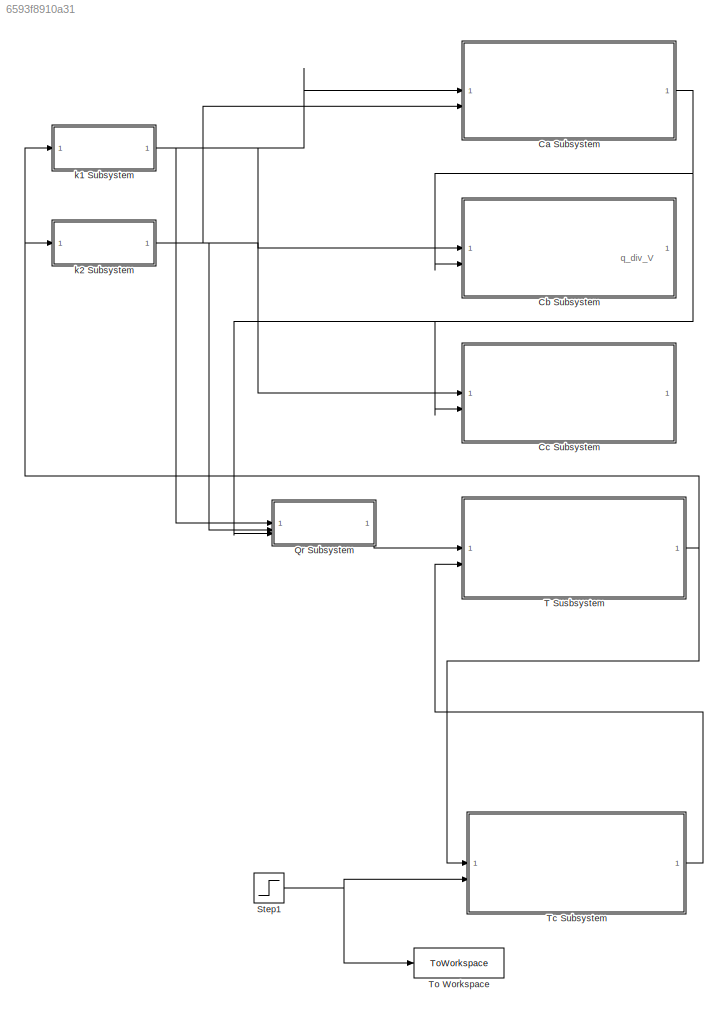
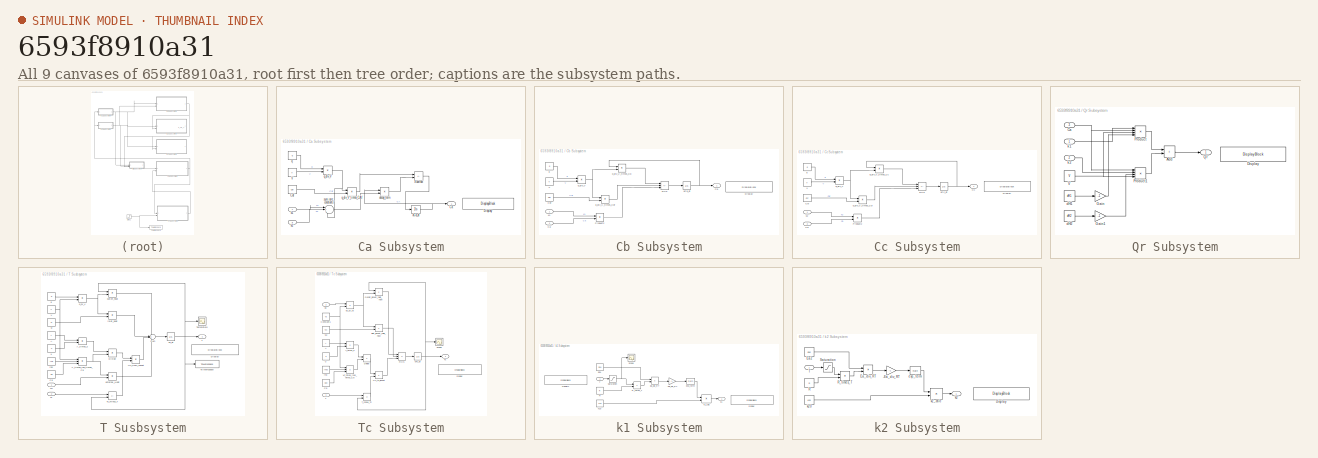
[diagram: thumbnail index - all 9 canvases of the model, root first then tree order]
MODEL slx_6593f8910a31
KIND model
CONFIG AbsTol = auto
CONFIG EnableMultiTasking = off
CONFIG FixedStep = auto
CONFIG MaxStep = auto
CONFIG MinStep = 1e-6
CONFIG RelTol = 1e-4
CONFIG SampleTimeConstraint = Unconstrained
CONFIG SolverName = VariableStepAuto
CONFIG StartTime = 0.0
CONFIG StopTime = 1000
BLOCK [SubSystem] Ca Subsystem
BLOCK [Outport] Ca Subsystem/Ca
BLOCK [Constant] Ca Subsystem/Caf
  Value = Caf
BLOCK [DisplayBlock] Ca Subsystem/Display
  LabelPosition = Hide
  Transparency = 1
BLOCK [Sum] Ca Subsystem/Subtract
  IconShape = rectangular
  Inputs = +-
BLOCK [Constant] Ca Subsystem/V
  Value = V
BLOCK [Integrator] Ca Subsystem/dCa_dt
  InitialCondition = 4.22
BLOCK [Product] Ca Subsystem/decay_term
BLOCK [Inport] Ca Subsystem/k1
BLOCK [Inport] Ca Subsystem/k2
  Port = 2
BLOCK [Constant] Ca Subsystem/q
  Value = q
BLOCK [Product] Ca Subsystem/q_div_V
  Inputs = */
BLOCK [Product] Ca Subsystem/q_div_V_times_CAf
BLOCK [Sum] Ca Subsystem/sum_rate_constants
  Inputs = |+++
BLOCK [SubSystem] Cb Subsystem
BLOCK [Inport] Cb Subsystem/Ca
  Port = 2
BLOCK [Outport] Cb Subsystem/Cb
BLOCK [Constant] Cb Subsystem/Cbf
  Value = Cbf
BLOCK [DisplayBlock] Cb Subsystem/Display
  LabelPosition = Hide
  Transparency = 1
BLOCK [Product] Cb Subsystem/Product2
BLOCK [Sum] Cb Subsystem/RHS
  IconShape = rectangular
  Inputs = -++
BLOCK [Constant] Cb Subsystem/V
  Value = V
BLOCK [Integrator] Cb Subsystem/dCb_dt
BLOCK [Inport] Cb Subsystem/k1
BLOCK [Constant] Cb Subsystem/q
  Value = q
BLOCK [Product] Cb Subsystem/q_div_V
  Inputs = */
BLOCK [Product] Cb Subsystem/q_div_V_times_Cb
BLOCK [Product] Cb Subsystem/q_div_V_times_Cbf
BLOCK [SubSystem] Cc Subsystem
BLOCK [Inport] Cc Subsystem/Ca
  Port = 2
BLOCK [Outport] Cc Subsystem/Cc
BLOCK [Constant] Cc Subsystem/Ccf
  Value = Ccf
BLOCK [DisplayBlock] Cc Subsystem/Display
  LabelPosition = Hide
  Transparency = 1
BLOCK [Product] Cc Subsystem/Product2
BLOCK [Sum] Cc Subsystem/RHS
  IconShape = rectangular
  Inputs = -++
BLOCK [Constant] Cc Subsystem/V
  Value = V
BLOCK [Integrator] Cc Subsystem/dCc_dt
BLOCK [Inport] Cc Subsystem/k2
BLOCK [Constant] Cc Subsystem/q
  Value = q
BLOCK [Product] Cc Subsystem/q_div_V
  Inputs = */
BLOCK [Product] Cc Subsystem/q_div_V_times_Cc
BLOCK [Product] Cc Subsystem/q_div_V_times_Ccf
BLOCK [SubSystem] Qr Subsystem
BLOCK [Sum] Qr Subsystem/Add
  IconShape = rectangular
BLOCK [Inport] Qr Subsystem/Ca
  Port = 3
BLOCK [DisplayBlock] Qr Subsystem/Display
  LabelPosition = Hide
  Transparency = 1
BLOCK [Gain] Qr Subsystem/Gain
  Gain = -1
BLOCK [Gain] Qr Subsystem/Gain1
  Gain = -1
BLOCK [Product] Qr Subsystem/Product
  Inputs = 4
BLOCK [Product] Qr Subsystem/Product1
  Inputs = 4
BLOCK [Outport] Qr Subsystem/Qr
BLOCK [Constant] Qr Subsystem/V
  Value = V
BLOCK [Constant] Qr Subsystem/dH1
  Value = dH1
BLOCK [Constant] Qr Subsystem/dH2
  Value = dH2
BLOCK [Inport] Qr Subsystem/k1
BLOCK [Inport] Qr Subsystem/k2
  Port = 2
BLOCK [Step] Step1
  After = 0.010
  Before = 0.005
  SampleTime = 0
  Time = 200
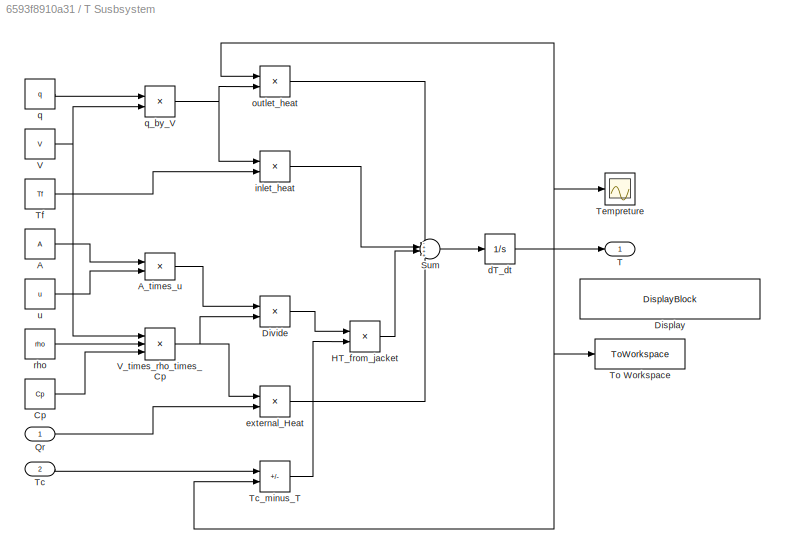
BLOCK [SubSystem] T Susbsystem
BLOCK [Constant] T Susbsystem/A
  Value = A
BLOCK [Product] T Susbsystem/A_times_u
BLOCK [Constant] T Susbsystem/Cp
  Value = Cp
BLOCK [DisplayBlock] T Susbsystem/Display
  LabelPosition = Hide
  Transparency = 1
BLOCK [Product] T Susbsystem/Divide
  Inputs = */
BLOCK [Product] T Susbsystem/HT_from_jacket
BLOCK [Inport] T Susbsystem/Qr
BLOCK [Sum] T Susbsystem/Sum
  Inputs = -+++
BLOCK [Outport] T Susbsystem/T
BLOCK [Inport] T Susbsystem/Tc
  Port = 2
BLOCK [Sum] T Susbsystem/Tc_minus_T
  IconShape = rectangular
  Inputs = +-
BLOCK [Scope] T Susbsystem/Tempreture
  Floating = off
  NumInputPorts = 1
  ScopeSpecificationString = Simulink.scopes.TimeScopeBlockCfg('CurrentConfiguration', extmgr.ConfigurationSet(extmgr.Configuration('Core','General UI',true),extmgr.Configuration('Core','Source UI',true),extmgr.Configuration('Sources','WiredSimulink',true,'DataLoggingVariableName','ScopeData1'),extmgr.Configuration('Visuals','Time Domain',true,'SerializedDisplays',{struct('MinYLimReal','305.31687','MaxYLimReal','310.52035','Y...<+1407ch>
BLOCK [Constant] T Susbsystem/Tf
  Value = Tf
BLOCK [ToWorkspace] T Susbsystem/To Workspace
  MaxDataPoints = 75
  SampleTime = -1
  Save2DSignal = 2-D array (concatenate along first dimension)
  VariableName = T_data
BLOCK [Constant] T Susbsystem/V
  SampleTime = -1
  Value = V
BLOCK [Product] T Susbsystem/V_times_rho_times_Cp
  Inputs = 3
BLOCK [Integrator] T Susbsystem/dT_dt
  InitialCondition = 310
BLOCK [Product] T Susbsystem/external_Heat
  Inputs = /*
BLOCK [Product] T Susbsystem/inlet_heat
BLOCK [Product] T Susbsystem/outlet_heat
BLOCK [Constant] T Susbsystem/q
  SampleTime = -1
  Value = q
BLOCK [Product] T Susbsystem/q_by_V
  Inputs = */
BLOCK [Constant] T Susbsystem/rho
  Value = rho
BLOCK [Constant] T Susbsystem/u
  Value = u
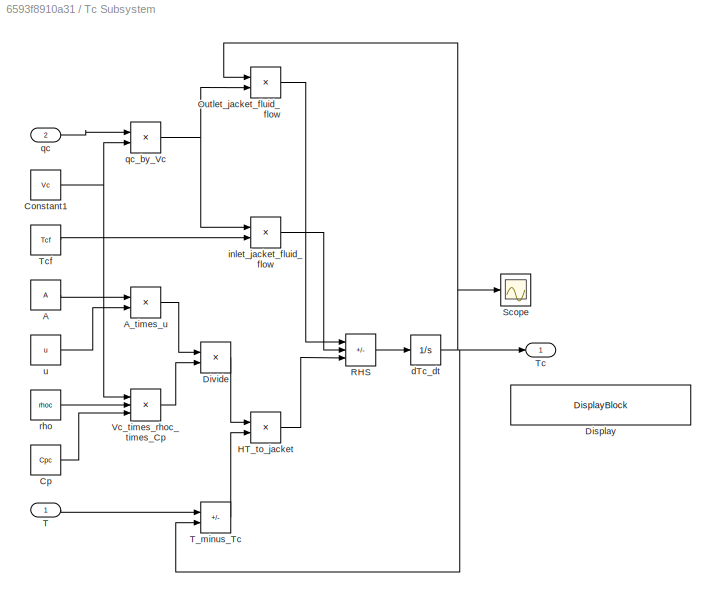
BLOCK [SubSystem] Tc Subsystem
BLOCK [Constant] Tc Subsystem/A
  Value = A
BLOCK [Product] Tc Subsystem/A_times_u
BLOCK [Constant] Tc Subsystem/Constant1
  Value = Vc
BLOCK [Constant] Tc Subsystem/Cp
  Value = Cpc
BLOCK [DisplayBlock] Tc Subsystem/Display
  LabelPosition = Hide
  Transparency = 1
BLOCK [Product] Tc Subsystem/Divide
  Inputs = */
BLOCK [Product] Tc Subsystem/HT_to_jacket
BLOCK [Product] Tc Subsystem/Outlet_jacket_fluid_flow
BLOCK [Sum] Tc Subsystem/RHS
  IconShape = rectangular
  Inputs = -++
BLOCK [Scope] Tc Subsystem/Scope
  Floating = off
  NumInputPorts = 1
  ScopeSpecificationString = Simulink.scopes.TimeScopeBlockCfg('CurrentConfiguration', extmgr.ConfigurationSet(extmgr.Configuration('Core','General UI',true),extmgr.Configuration('Core','Source UI',true),extmgr.Configuration('Sources','WiredSimulink',true,'DataLoggingVariableName','ScopeData3'),extmgr.Configuration('Visuals','Time Domain',true,'SerializedDisplays',{struct('MinYLimReal','286.79514','MaxYLimReal','318.8437','YL...<+1403ch>
BLOCK [Inport] Tc Subsystem/T
BLOCK [Sum] Tc Subsystem/T_minus_Tc
  IconShape = rectangular
  Inputs = +-
BLOCK [Outport] Tc Subsystem/Tc
BLOCK [Constant] Tc Subsystem/Tcf
  Value = Tcf
BLOCK [Product] Tc Subsystem/Vc_times_rhoc_times_Cp
  Inputs = 3
BLOCK [Integrator] Tc Subsystem/dTc_dt
  InitialCondition = 290
BLOCK [Product] Tc Subsystem/inlet_jacket_fluid_flow
BLOCK [Inport] Tc Subsystem/qc
  Port = 2
BLOCK [Product] Tc Subsystem/qc_by_Vc
  Inputs = */
BLOCK [Constant] Tc Subsystem/rho
  Value = rhoc
BLOCK [Constant] Tc Subsystem/u
  Value = u
BLOCK [ToWorkspace] To Workspace
  MaxDataPoints = 75
  SampleTime = -1
  Save2DSignal = 2-D array (concatenate along first dimension)
  VariableName = qc_data
BLOCK [SubSystem] k1 Subsystem
BLOCK [Gain] k1 Subsystem/-Ea_div_RT
  Gain = -1
BLOCK [DisplayBlock] k1 Subsystem/Display
  LabelPosition = Hide
  Transparency = 1
BLOCK [DisplayBlock] k1 Subsystem/Display1
  LabelPosition = Hide
  Transparency = 1
BLOCK [Constant] k1 Subsystem/Ea1
  Value = Ea1
BLOCK [Product] k1 Subsystem/Ea_div_RT
  Inputs = */
BLOCK [Constant] k1 Subsystem/R
  Value = R
BLOCK [Product] k1 Subsystem/R_times_T
BLOCK [Saturate] k1 Subsystem/Saturation
  LowerLimit = 0.001
  UpperLimit = Inf
BLOCK [Scope] k1 Subsystem/Scope
  Floating = off
  NumInputPorts = 1
  ScopeSpecificationString = Simulink.scopes.TimeScopeBlockCfg('CurrentConfiguration', extmgr.ConfigurationSet(extmgr.Configuration('Core','General UI',true),extmgr.Configuration('Core','Source UI',true),extmgr.Configuration('Sources','WiredSimulink',true,'DataLoggingVariableName','ScopeData1'),extmgr.Configuration('Visuals','Time Domain',true,'SerializedDisplays',{struct('MinYLimReal','300.84404','MaxYLimReal','312.12844','Y...<+1447ch>
BLOCK [Inport] k1 Subsystem/T
BLOCK [Math] k1 Subsystem/exp_term
BLOCK [Outport] k1 Subsystem/k1
BLOCK [Constant] k1 Subsystem/k10
  Value = k10
BLOCK [Product] k1 Subsystem/k1_calc
BLOCK [SubSystem] k2 Subsystem
BLOCK [Gain] k2 Subsystem/-Ea_div_RT
  Gain = -1
BLOCK [DisplayBlock] k2 Subsystem/Display
  LabelPosition = Hide
  Transparency = 1
BLOCK [Constant] k2 Subsystem/Ea2
  Value = Ea2
BLOCK [Product] k2 Subsystem/Ea_div_RT
  Inputs = */
BLOCK [Constant] k2 Subsystem/R
  Value = R
BLOCK [Product] k2 Subsystem/R_times_T
BLOCK [Saturate] k2 Subsystem/Saturation
  LowerLimit = 0.001
  UpperLimit = Inf
BLOCK [Inport] k2 Subsystem/T
BLOCK [Math] k2 Subsystem/exp_term
BLOCK [Outport] k2 Subsystem/k2
BLOCK [Constant] k2 Subsystem/k20
  Value = k20
BLOCK [Product] k2 Subsystem/k2_calc
ANNOTATION (root): q_div_V
LINE Ca Subsystem/Caf:1 -> Ca Subsystem/q_div_V_times_CAf:2
LINE Ca Subsystem/Subtract:1 -> Ca Subsystem/dCa_dt:1
LINE Ca Subsystem/V:1 -> Ca Subsystem/q_div_V:2
NET Ca Subsystem/dCa_dt:1 -> Ca Subsystem/Ca:1, Ca Subsystem/decay_term:1
LINE Ca Subsystem/decay_term:1 -> Ca Subsystem/Subtract:2
LINE Ca Subsystem/k1:1 -> Ca Subsystem/sum_rate_constants:1
LINE Ca Subsystem/k2:1 -> Ca Subsystem/sum_rate_constants:2
LINE Ca Subsystem/q:1 -> Ca Subsystem/q_div_V:1
NET Ca Subsystem/q_div_V:1 -> Ca Subsystem/q_div_V_times_CAf:1, Ca Subsystem/sum_rate_constants:3
LINE Ca Subsystem/q_div_V_times_CAf:1 -> Ca Subsystem/Subtract:1
LINE Ca Subsystem/sum_rate_constants:1 -> Ca Subsystem/decay_term:2
NET Ca Subsystem:1 -> Cb Subsystem:2, Cc Subsystem:2, Qr Subsystem:3
LINE Cb Subsystem/Ca:1 -> Cb Subsystem/Product2:2
LINE Cb Subsystem/Cbf:1 -> Cb Subsystem/q_div_V_times_Cbf:2
LINE Cb Subsystem/Product2:1 -> Cb Subsystem/RHS:3
LINE Cb Subsystem/RHS:1 -> Cb Subsystem/dCb_dt:1
LINE Cb Subsystem/V:1 -> Cb Subsystem/q_div_V:2
NET Cb Subsystem/dCb_dt:1 -> Cb Subsystem/Cb:1, Cb Subsystem/q_div_V_times_Cb:1
LINE Cb Subsystem/k1:1 -> Cb Subsystem/Product2:1
LINE Cb Subsystem/q:1 -> Cb Subsystem/q_div_V:1
NET Cb Subsystem/q_div_V:1 -> Cb Subsystem/q_div_V_times_Cb:2, Cb Subsystem/q_div_V_times_Cbf:1
LINE Cb Subsystem/q_div_V_times_Cb:1 -> Cb Subsystem/RHS:1
LINE Cb Subsystem/q_div_V_times_Cbf:1 -> Cb Subsystem/RHS:2
LINE Cc Subsystem/Ca:1 -> Cc Subsystem/Product2:2
LINE Cc Subsystem/Ccf:1 -> Cc Subsystem/q_div_V_times_Ccf:2
LINE Cc Subsystem/Product2:1 -> Cc Subsystem/RHS:3
LINE Cc Subsystem/RHS:1 -> Cc Subsystem/dCc_dt:1
LINE Cc Subsystem/V:1 -> Cc Subsystem/q_div_V:2
NET Cc Subsystem/dCc_dt:1 -> Cc Subsystem/Cc:1, Cc Subsystem/q_div_V_times_Cc:1
LINE Cc Subsystem/k2:1 -> Cc Subsystem/Product2:1
LINE Cc Subsystem/q:1 -> Cc Subsystem/q_div_V:1
NET Cc Subsystem/q_div_V:1 -> Cc Subsystem/q_div_V_times_Cc:2, Cc Subsystem/q_div_V_times_Ccf:1
LINE Cc Subsystem/q_div_V_times_Cc:1 -> Cc Subsystem/RHS:1
LINE Cc Subsystem/q_div_V_times_Ccf:1 -> Cc Subsystem/RHS:2
LINE Qr Subsystem/Add:1 -> Qr Subsystem/Qr:1
NET Qr Subsystem/Ca:1 -> Qr Subsystem/Product1:1, Qr Subsystem/Product:2
LINE Qr Subsystem/Gain1:1 -> Qr Subsystem/Product1:3
LINE Qr Subsystem/Gain:1 -> Qr Subsystem/Product:4
LINE Qr Subsystem/Product1:1 -> Qr Subsystem/Add:2
LINE Qr Subsystem/Product:1 -> Qr Subsystem/Add:1
NET Qr Subsystem/V:1 -> Qr Subsystem/Product1:4, Qr Subsystem/Product:3
LINE Qr Subsystem/dH1:1 -> Qr Subsystem/Gain:1
LINE Qr Subsystem/dH2:1 -> Qr Subsystem/Gain1:1
LINE Qr Subsystem/k1:1 -> Qr Subsystem/Product:1
LINE Qr Subsystem/k2:1 -> Qr Subsystem/Product1:2
LINE Qr Subsystem:1 -> T Susbsystem:1
NET Step1:1 -> Tc Subsystem:2, To Workspace:1
LINE T Susbsystem/A:1 -> T Susbsystem/A_times_u:1
LINE T Susbsystem/A_times_u:1 -> T Susbsystem/Divide:1
LINE T Susbsystem/Cp:1 -> T Susbsystem/V_times_rho_times_Cp:3
LINE T Susbsystem/Divide:1 -> T Susbsystem/HT_from_jacket:1
LINE T Susbsystem/HT_from_jacket:1 -> T Susbsystem/Sum:3
LINE T Susbsystem/Qr:1 -> T Susbsystem/external_Heat:2
LINE T Susbsystem/Sum:1 -> T Susbsystem/dT_dt:1
LINE T Susbsystem/Tc:1 -> T Susbsystem/Tc_minus_T:1
LINE T Susbsystem/Tc_minus_T:1 -> T Susbsystem/HT_from_jacket:2
LINE T Susbsystem/Tf:1 -> T Susbsystem/inlet_heat:2
NET T Susbsystem/V:1 -> T Susbsystem/V_times_rho_times_Cp:1, T Susbsystem/q_by_V:2
NET T Susbsystem/V_times_rho_times_Cp:1 -> T Susbsystem/Divide:2, T Susbsystem/external_Heat:1
NET T Susbsystem/dT_dt:1 -> T Susbsystem/T:1, T Susbsystem/Tc_minus_T:2, T Susbsystem/Tempreture:1, T Susbsystem/To Workspace:1, T Susbsystem/outlet_heat:1
LINE T Susbsystem/external_Heat:1 -> T Susbsystem/Sum:4
LINE T Susbsystem/inlet_heat:1 -> T Susbsystem/Sum:2
LINE T Susbsystem/outlet_heat:1 -> T Susbsystem/Sum:1
LINE T Susbsystem/q:1 -> T Susbsystem/q_by_V:1
NET T Susbsystem/q_by_V:1 -> T Susbsystem/inlet_heat:1, T Susbsystem/outlet_heat:2
LINE T Susbsystem/rho:1 -> T Susbsystem/V_times_rho_times_Cp:2
LINE T Susbsystem/u:1 -> T Susbsystem/A_times_u:2
NET T Susbsystem:1 -> Tc Subsystem:1, k1 Subsystem:1, k2 Subsystem:1
LINE Tc Subsystem/A:1 -> Tc Subsystem/A_times_u:1
LINE Tc Subsystem/A_times_u:1 -> Tc Subsystem/Divide:1
NET Tc Subsystem/Constant1:1 -> Tc Subsystem/Vc_times_rhoc_times_Cp:1, Tc Subsystem/qc_by_Vc:2
LINE Tc Subsystem/Cp:1 -> Tc Subsystem/Vc_times_rhoc_times_Cp:3
LINE Tc Subsystem/Divide:1 -> Tc Subsystem/HT_to_jacket:1
LINE Tc Subsystem/HT_to_jacket:1 -> Tc Subsystem/RHS:3
LINE Tc Subsystem/Outlet_jacket_fluid_flow:1 -> Tc Subsystem/RHS:1
LINE Tc Subsystem/RHS:1 -> Tc Subsystem/dTc_dt:1
LINE Tc Subsystem/T:1 -> Tc Subsystem/T_minus_Tc:1
LINE Tc Subsystem/T_minus_Tc:1 -> Tc Subsystem/HT_to_jacket:2
LINE Tc Subsystem/Tcf:1 -> Tc Subsystem/inlet_jacket_fluid_flow:2
LINE Tc Subsystem/Vc_times_rhoc_times_Cp:1 -> Tc Subsystem/Divide:2
NET Tc Subsystem/dTc_dt:1 -> Tc Subsystem/Outlet_jacket_fluid_flow:1, Tc Subsystem/Scope:1, Tc Subsystem/T_minus_Tc:2, Tc Subsystem/Tc:1
LINE Tc Subsystem/inlet_jacket_fluid_flow:1 -> Tc Subsystem/RHS:2
LINE Tc Subsystem/qc:1 -> Tc Subsystem/qc_by_Vc:1
NET Tc Subsystem/qc_by_Vc:1 -> Tc Subsystem/Outlet_jacket_fluid_flow:2, Tc Subsystem/inlet_jacket_fluid_flow:1
LINE Tc Subsystem/rho:1 -> Tc Subsystem/Vc_times_rhoc_times_Cp:2
LINE Tc Subsystem/u:1 -> Tc Subsystem/A_times_u:2
LINE Tc Subsystem:1 -> T Susbsystem:2
LINE k1 Subsystem/-Ea_div_RT:1 -> k1 Subsystem/exp_term:1
LINE k1 Subsystem/Ea1:1 -> k1 Subsystem/Ea_div_RT:1
LINE k1 Subsystem/Ea_div_RT:1 -> k1 Subsystem/-Ea_div_RT:1
LINE k1 Subsystem/R:1 -> k1 Subsystem/R_times_T:2
LINE k1 Subsystem/R_times_T:1 -> k1 Subsystem/Ea_div_RT:2
NET k1 Subsystem/Saturation:1 -> k1 Subsystem/R_times_T:1, k1 Subsystem/Scope:1
LINE k1 Subsystem/T:1 -> k1 Subsystem/Saturation:1
LINE k1 Subsystem/exp_term:1 -> k1 Subsystem/k1_calc:1
LINE k1 Subsystem/k10:1 -> k1 Subsystem/k1_calc:2
LINE k1 Subsystem/k1_calc:1 -> k1 Subsystem/k1:1
NET k1 Subsystem:1 -> Ca Subsystem:1, Cb Subsystem:1, Qr Subsystem:1
LINE k2 Subsystem/-Ea_div_RT:1 -> k2 Subsystem/exp_term:1
LINE k2 Subsystem/Ea2:1 -> k2 Subsystem/Ea_div_RT:1
LINE k2 Subsystem/Ea_div_RT:1 -> k2 Subsystem/-Ea_div_RT:1
LINE k2 Subsystem/R:1 -> k2 Subsystem/R_times_T:2
LINE k2 Subsystem/R_times_T:1 -> k2 Subsystem/Ea_div_RT:2
LINE k2 Subsystem/Saturation:1 -> k2 Subsystem/R_times_T:1
LINE k2 Subsystem/T:1 -> k2 Subsystem/Saturation:1
LINE k2 Subsystem/exp_term:1 -> k2 Subsystem/k2_calc:1
LINE k2 Subsystem/k20:1 -> k2 Subsystem/k2_calc:2
LINE k2 Subsystem/k2_calc:1 -> k2 Subsystem/k2:1
NET k2 Subsystem:1 -> Ca Subsystem:2, Cc Subsystem:1, Qr Subsystem:2
note: NET lines group one-source signal fan-out (src -> all destinations, sorted); 1:1 wires keep LINE
